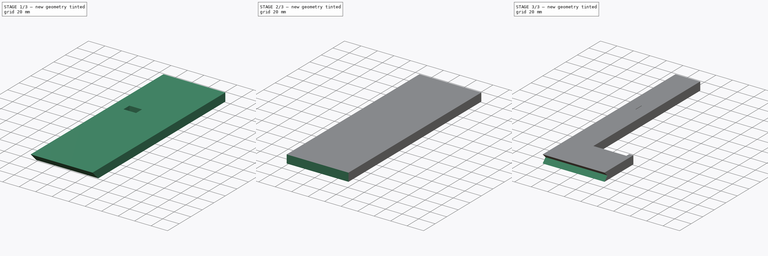
[diagram: build sequence overview — one tinted view per stage of 3, left to right]
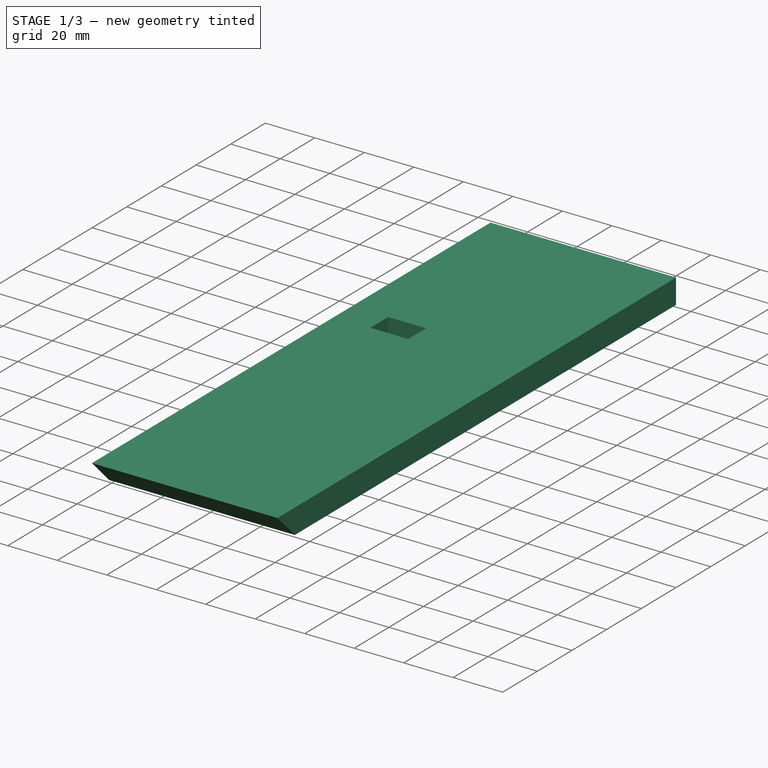
[diagram: stage 1 of 3 — iso view after this stage's code; geometry added in this stage tinted green]
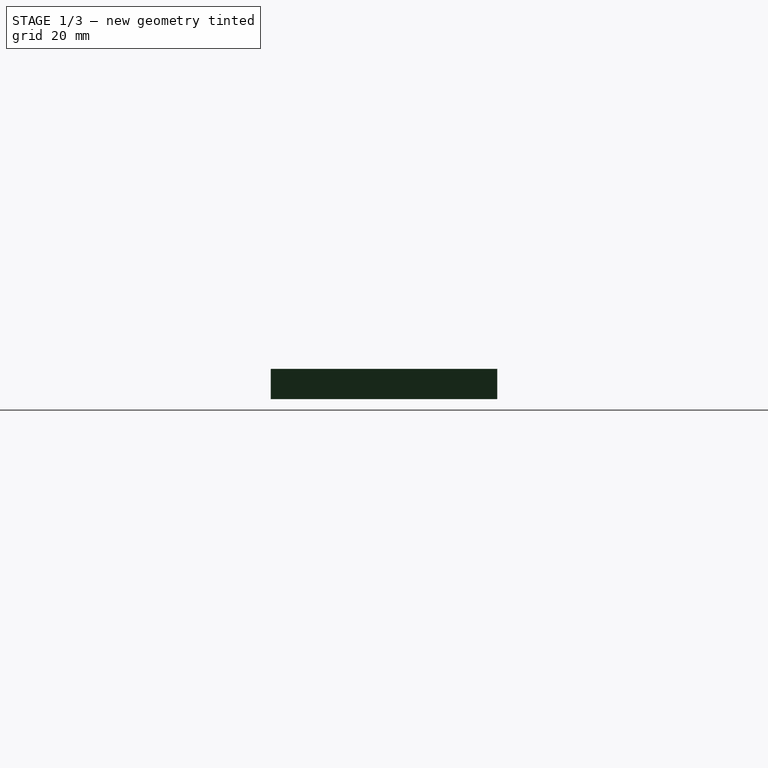
[diagram: stage 1 of 3 — front view after this stage's code; geometry added in this stage tinted green]
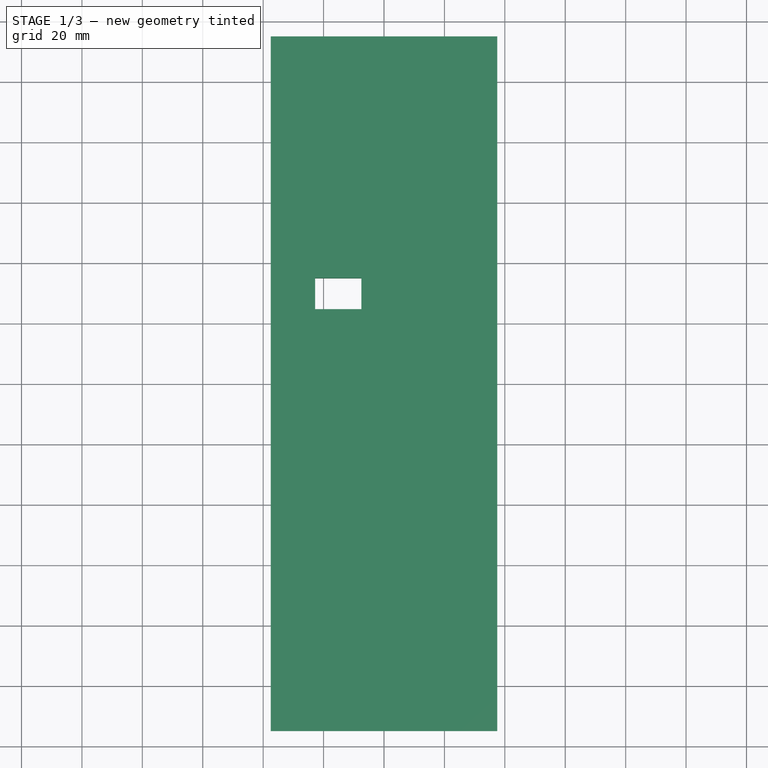
[diagram: stage 1 of 3 — top view after this stage's code; geometry added in this stage tinted green]
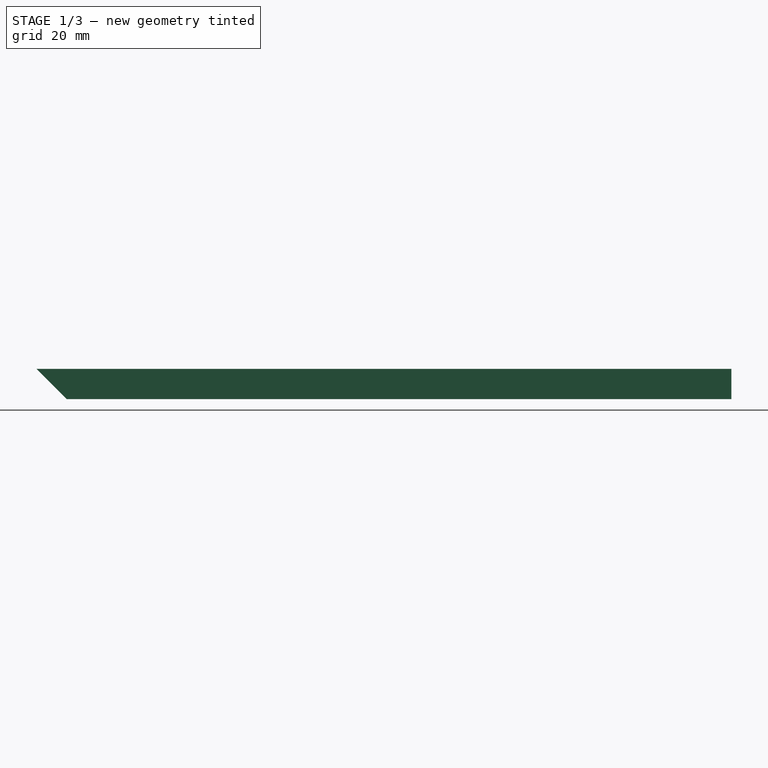
[diagram: stage 1 of 3 — right view after this stage's code; geometry added in this stage tinted green]
FCSTD DOCUMENT  (FreeCAD 0.20R29410 (Git))
Label: vertical_holder
License: All rights reserved
LicenseURL: http://en.wikipedia.org/wiki/All_rights_reserved
objects: Sketcher::SketchObject×8, PartDesign::Pocket×6, PartDesign::Plane×4, PartDesign::Pad×2, PartDesign::Body×2, Spreadsheet::Sheet×1
note: 30 computed .brp shape members not serialized (recipe doc carries the construction recipe); baked Part::Feature solids carry a one-line shape summary decoded from their .brp

FEATURE [Sketcher::SketchObject] Sketch001
  FullyConstrained = true
  MapMode = 5
  Support = -> [XY_Plane001]
  expr: Constraints[7] = <<Spreadsheet>>.height
  expr: Constraints[8] = <<Spreadsheet>>.depth
  sketch-geometry (4):
    g0: LineSegment StartX=-37.5 StartY=-115 StartZ=0 EndX=37.5 EndY=-115 EndZ=0
    g1: LineSegment StartX=37.5 StartY=-115 StartZ=0 EndX=37.5 EndY=115 EndZ=0
    g2: LineSegment StartX=37.5 StartY=115 StartZ=0 EndX=-37.5 EndY=115 EndZ=0
    g3: LineSegment StartX=-37.5 StartY=115 StartZ=0 EndX=-37.5 EndY=-115 EndZ=0
  constraints (11):
    c: Horizontal(g0)
    c: Vertical(g1)
    c: Coincident(g1,g2)
    c: Horizontal(g2)
    c: Vertical(g3)
    c: Coincident(g3,g0)
    c: Symmetric(g1,g0,g-1)
    c: Distance(g2,g0) = 230
    c: Distance(g2) = 75
    c: Coincident(g3,g2)
    c: Coincident(g1,g0)
FEATURE [PartDesign::Pad] Pad001  label="right_hook_pad"
  Direction = (0,0,1)
  Length = 10
  Length2 = 10
  Profile = -> Sketch001
  ReferenceAxis = -> Sketch001 [N_Axis]
  Type = 0
  expr: Length = <<Spreadsheet>>.thickness
FEATURE [PartDesign::Plane] DatumPlane001  label="right_front"
  AttachmentOffset = pos=(0,0,37.5) rot=(0,0,1;0rad)
  Length = 251.448
  MapMode = 5
  Placement = pos=(37.5,-8.3e-15,8.3e-15) rot=(0.57735,0.57735,0.57735;2.0944rad)
  ResizeMode = 0
  Support = -> [YZ_Plane001]
  Width = 71.4476
  expr: .AttachmentOffset.Base.z = <<Spreadsheet>>.depth / 2
FEATURE [Sketcher::SketchObject] Sketch003
  FullyConstrained = true
  MapMode = 5
  Placement = pos=(37.5,-8.3e-15,8.3e-15) rot=(0.57735,0.57735,0.57735;2.0944rad)
  Support = -> [DatumPlane001]
  expr: Constraints[10] = <<Spreadsheet>>.thickness
  expr: Constraints[2] = <<Spreadsheet>>.height / 2
  sketch-geometry (4):
    g0: LineSegment StartX=0 StartY=0 StartZ=0 EndX=-115 EndY=0 EndZ=0
    g1: LineSegment StartX=-115 StartY=0 StartZ=0 EndX=-105 EndY=0 EndZ=0
    g2: LineSegment StartX=-105 StartY=0 StartZ=0 EndX=-115 EndY=10 EndZ=0
    g3: LineSegment StartX=-115 StartY=10 StartZ=0 EndX=-115 EndY=0 EndZ=0
  constraints (11):
    c: Coincident(g0,g-1)
    c: PointOnObject(g0,g-1)
    c: Distance(g0) = 115
    c: Coincident(g0,g1)
    c: PointOnObject(g1,g0)
    c: Coincident(g1,g2)
    c: Coincident(g2,g3)
    c: Coincident(g3,g1)
    c: Vertical(g3)
    c: Equal(g1,g3)
    c: Distance(g3) = 10
FEATURE [PartDesign::Pocket] Pocket001  label="right_angle_cutout"
  BaseFeature = -> Pad001
  Direction = (-1,1e-16,-1e-16)
  Length = 75
  Length2 = 5
  Profile = -> Sketch003
  ReferenceAxis = -> Sketch003 [N_Axis]
  Type = 0
  expr: Length = <<Spreadsheet>>.depth
FEATURE [PartDesign::Body] Body  label="left hook"
  Group = -> [Sketch,Pad,DatumPlane,Sketch002,Pocket,DatumPlane002,Sketch004,Pocket002,Sketch005,Pocket003]
  Origin = -> Origin
  Tip = -> Pocket003
FEATURE [PartDesign::Plane] DatumPlane003  label="right_top"
  AttachmentOffset = pos=(0,0,10) rot=(0,0,1;0rad)
  Length = 101.268
  MapMode = 5
  Placement = pos=(0,0,10) rot=(0,0,1;0rad)
  ResizeMode = 0
  Support = -> [XY_Plane001]
  Width = 256.268
  expr: .AttachmentOffset.Base.z = <<Spreadsheet>>.thickness
FEATURE [Sketcher::SketchObject] Sketch006
  FullyConstrained = true
  MapMode = 5
  Placement = pos=(0,0,10) rot=(0,0,1;0rad)
  Support = -> [DatumPlane003]
  expr: Constraints[10] = <<Spreadsheet>>.depth
  expr: Constraints[14] = <<Spreadsheet>>.back_depth
  expr: Constraints[24] = <<Spreadsheet>>.cross_position
  expr: Constraints[25] = <<Spreadsheet>>.thickness + 0.3
  expr: Constraints[26] = <<Spreadsheet>>.back_depth / 2 + 0.3
  expr: Constraints[9] = <<Spreadsheet>>.height
  sketch-geometry (9):
    g0: LineSegment StartX=-37.5 StartY=115 StartZ=0 EndX=37.5 EndY=115 EndZ=0
    g1: LineSegment StartX=37.5 StartY=115 StartZ=0 EndX=37.5 EndY=-115 EndZ=0
    g2: LineSegment StartX=37.5 StartY=-115 StartZ=0 EndX=-37.5 EndY=-115 EndZ=0
    g3: LineSegment StartX=-37.5 StartY=-115 StartZ=0 EndX=-37.5 EndY=115 EndZ=0
    g4: LineSegment StartX=-7.5 StartY=115 StartZ=0 EndX=-7.5 EndY=-115 EndZ=0
    g5: LineSegment StartX=-7.5 StartY=24.7 StartZ=0 EndX=-22.8 EndY=24.7 EndZ=0
    g6: LineSegment StartX=-22.8 StartY=24.7 StartZ=0 EndX=-22.8 EndY=35 EndZ=0
    g7: LineSegment StartX=-22.8 StartY=35 StartZ=0 EndX=-7.5 EndY=35 EndZ=0
    g8: LineSegment StartX=-7.5 StartY=35 StartZ=0 EndX=-7.5 EndY=24.7 EndZ=0
  constraints (27):
    c: Coincident(g0,g1)
    c: Coincident(g1,g2)
    c: Coincident(g2,g3)
    c: Coincident(g3,g0)
    c: Horizontal(g0)
    c: Horizontal(g2)
    c: Vertical(g1)
    c: Vertical(g3)
    c: Symmetric(g1,g0,g-1)
    c: Distance(g1) = 230
    c: Distance(g2) = 75
    c: PointOnObject(g4,g0)
    c: PointOnObject(g4,g2)
    c: Vertical(g4)
    c: Distance(g0,g4) = 30
    c: Coincident(g5,g6)
    c: Coincident(g6,g7)
    c: Coincident(g7,g8)
    c: Coincident(g8,g5)
    c: Horizontal(g5)
    c: Horizontal(g7)
    c: Vertical(g6)
    c: Vertical(g8)
    c: PointOnObject(g5,g4)
    c: Distance(g7,g2) = 150
    c: Distance(g8) = 10.3
    c: Distance(g5) = 15.3
FEATURE [PartDesign::Pocket] Pocket004  label="right_cross"
  BaseFeature = -> Pocket001
  Direction = (0,0,-1)
  Length = 10
  Length2 = 5
  Profile = -> Sketch006
  ReferenceAxis = -> Sketch006 [N_Axis]
  Type = 0
  expr: Length = <<Spreadsheet>>.thickness
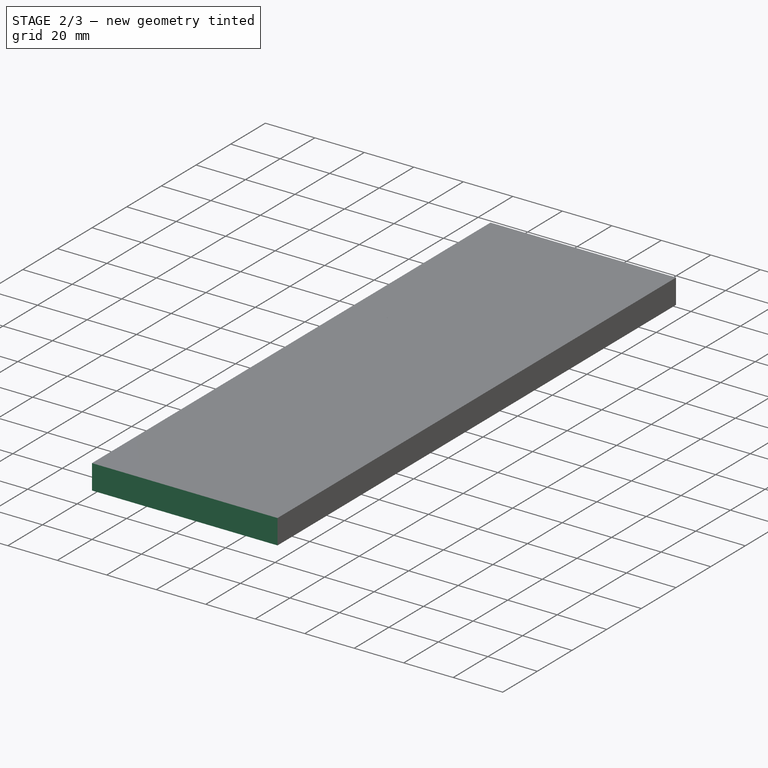
[diagram: stage 2 of 3 — iso view after this stage's code; geometry added in this stage tinted green]
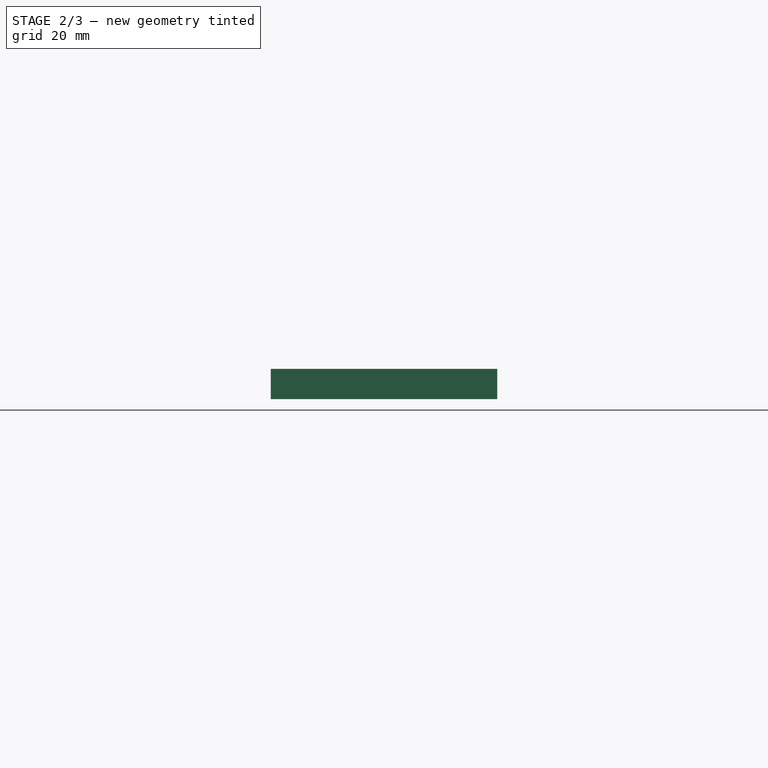
[diagram: stage 2 of 3 — front view after this stage's code; geometry added in this stage tinted green]
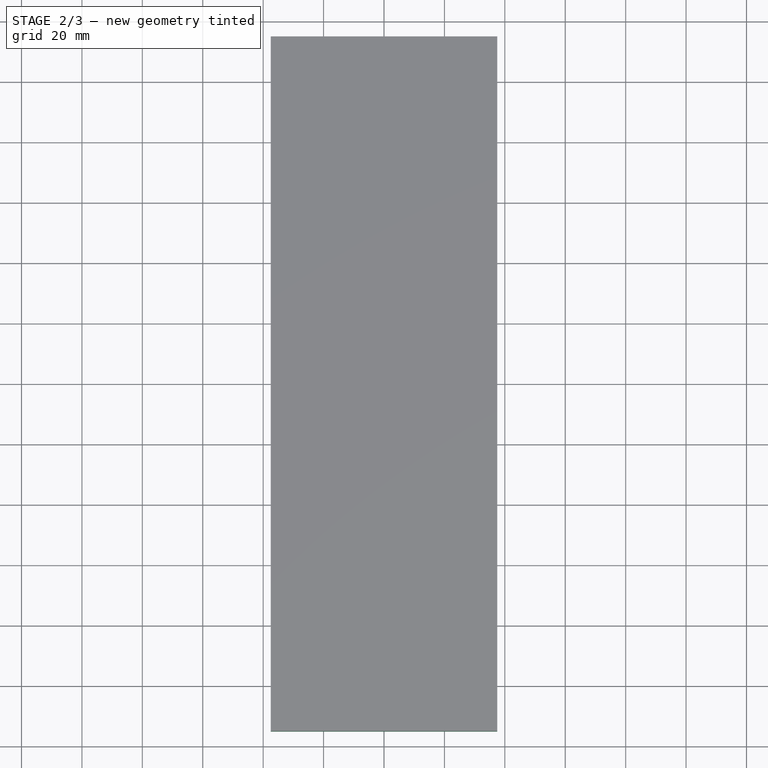
[diagram: stage 2 of 3 — top view after this stage's code; geometry added in this stage tinted green]
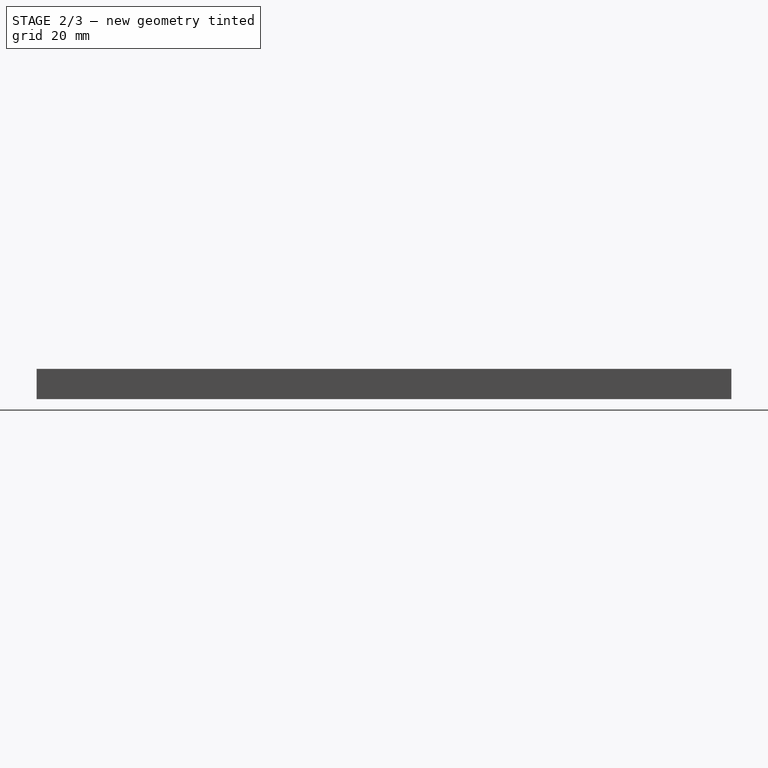
[diagram: stage 2 of 3 — right view after this stage's code; geometry added in this stage tinted green]
FEATURE [Spreadsheet::Sheet] Spreadsheet
  cells = A1=Height; B1=Depth; C1=Thickness; D1=Cross position; E1=Hook height; F1=Hook Depth; G1=Hook thickness; H1=back depth; A2(height)=230; B2(depth)=75; C2(thickness)=10; D2(cross_position)=150; E2(hook_height)=50; F2(hook_depth)=5; G2(hook_thickness)=5; H2(back_depth)=30
FEATURE [Sketcher::SketchObject] Sketch
  FullyConstrained = true
  MapMode = 5
  Support = -> [XY_Plane]
  expr: Constraints[4] = <<Spreadsheet>>.depth
  expr: Constraints[5] = <<Spreadsheet>>.height
  sketch-geometry (4):
    g0: LineSegment StartX=-37.5 StartY=115 StartZ=0 EndX=-37.5 EndY=-115 EndZ=0
    g1: LineSegment StartX=-37.5 StartY=-115 StartZ=0 EndX=37.5 EndY=-115 EndZ=0
    g2: LineSegment StartX=37.5 StartY=-115 StartZ=0 EndX=37.5 EndY=115 EndZ=0
    g3: LineSegment StartX=37.5 StartY=115 StartZ=0 EndX=-37.5 EndY=115 EndZ=0
  constraints (11):
    c: Vertical(g0)
    c: Coincident(g0,g1)
    c: Horizontal(g1)
    c: Symmetric(g0,g1,g-1)
    c: Distance(g1) = 75
    c: Distance(g0) = 230
    c: Coincident(g1,g2)
    c: Vertical(g2)
    c: Coincident(g3,g0)
    c: Horizontal(g3)
    c: Coincident(g3,g2)
FEATURE [PartDesign::Pad] Pad  label="left_hook_pad"
  Direction = (0,0,1)
  Length = 10
  Length2 = 10
  Profile = -> Sketch
  ReferenceAxis = -> Sketch [N_Axis]
  Type = 0
  expr: Length = <<Spreadsheet>>.thickness
FEATURE [Sketcher::SketchObject] Sketch007
  FullyConstrained = true
  MapMode = 5
  Placement = pos=(0,0,10) rot=(0,0,1;0rad)
  Support = -> [DatumPlane003]
  expr: Constraints[10] = <<Spreadsheet>>.depth
  expr: Constraints[14] = <<Spreadsheet>>.back_depth
  expr: Constraints[28] = <<Spreadsheet>>.hook_thickness
  expr: Constraints[29] = <<Spreadsheet>>.hook_height
  expr: Constraints[30] = <<Spreadsheet>>.hook_height - <<Spreadsheet>>.hook_depth
  expr: Constraints[9] = <<Spreadsheet>>.height
  sketch-geometry (11):
    g0: LineSegment StartX=-37.5 StartY=115 StartZ=0 EndX=37.5 EndY=115 EndZ=0
    g1: LineSegment StartX=37.5 StartY=115 StartZ=0 EndX=37.5 EndY=-115 EndZ=0
    g2: LineSegment StartX=37.5 StartY=-115 StartZ=0 EndX=-37.5 EndY=-115 EndZ=0
    g3: LineSegment StartX=-37.5 StartY=-115 StartZ=0 EndX=-37.5 EndY=115 EndZ=0
    g4: LineSegment StartX=-7.5 StartY=115 StartZ=0 EndX=-7.5 EndY=-115 EndZ=0
    g5: LineSegment StartX=-7.5 StartY=115 StartZ=0 EndX=-7.5 EndY=-70 EndZ=0
    g6: LineSegment StartX=-7.5 StartY=-70 StartZ=0 EndX=32.5 EndY=-70 EndZ=0
    g7: LineSegment StartX=32.5 StartY=-70 StartZ=0 EndX=32.5 EndY=-65 EndZ=0
    g8: LineSegment StartX=32.5 StartY=-65 StartZ=0 EndX=37.5 EndY=-65 EndZ=0
    g9: LineSegment StartX=37.5 StartY=-65 StartZ=0 EndX=37.5 EndY=115 EndZ=0
    g10: LineSegment StartX=37.5 StartY=115 StartZ=0 EndX=-7.5 EndY=115 EndZ=0
  constraints (31):
    c: Coincident(g0,g1)
    c: Coincident(g1,g2)
    c: Coincident(g2,g3)
    c: Coincident(g3,g0)
    c: Horizontal(g0)
    c: Horizontal(g2)
    c: Vertical(g1)
    c: Vertical(g3)
    c: Symmetric(g1,g0,g-1)
    c: Distance(g1) = 230
    c: Distance(g2) = 75
    c: PointOnObject(g4,g0)
    c: PointOnObject(g4,g2)
    c: Vertical(g4)
    c: Distance(g4,g0) = 30
    c: Vertical(g5)
    c: Coincident(g5,g6)
    c: Horizontal(g6)
    c: Coincident(g6,g7)
    c: Coincident(g7,g8)
    c: Horizontal(g8)
    c: Coincident(g8,g9)
    c: Vertical(g9)
    c: Coincident(g9,g10)
    c: Vertical(g7)
    c: Coincident(g10,g5)
    c: Coincident(g5,g4)
    c: Coincident(g9,g0)
    c: Distance(g8) = 5
    c: Distance(g8,g1) = 50
    c: Distance(g5,g4) = 45
FEATURE [PartDesign::Pocket] Pocket005  label="right_hook"
  BaseFeature = -> Pocket004
  Direction = (0,0,-1)
  Length = 10
  Length2 = 5
  Profile = -> Sketch007
  ReferenceAxis = -> Sketch007 [N_Axis]
  Type = 0
  expr: Length = <<Spreadsheet>>.thickness
FEATURE [PartDesign::Body] Body001  label="right hook"
  Group = -> [Sketch001,Pad001,DatumPlane001,Sketch003,Pocket001,DatumPlane003,Sketch006,Pocket004,Sketch007,Pocket005]
  Origin = -> Origin001
  Tip = -> Pocket005
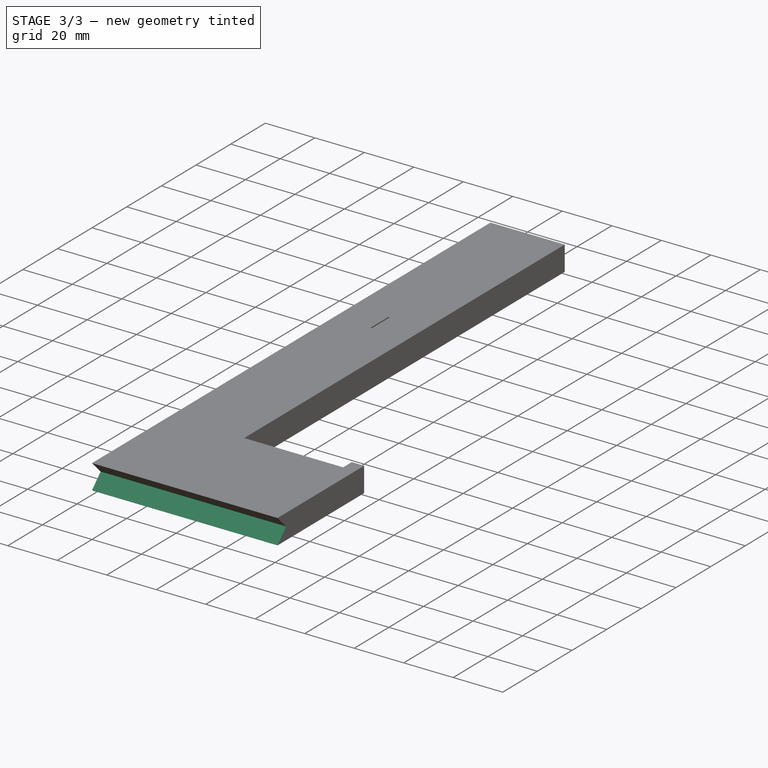
[diagram: stage 3 of 3 — iso view after this stage's code; geometry added in this stage tinted green]
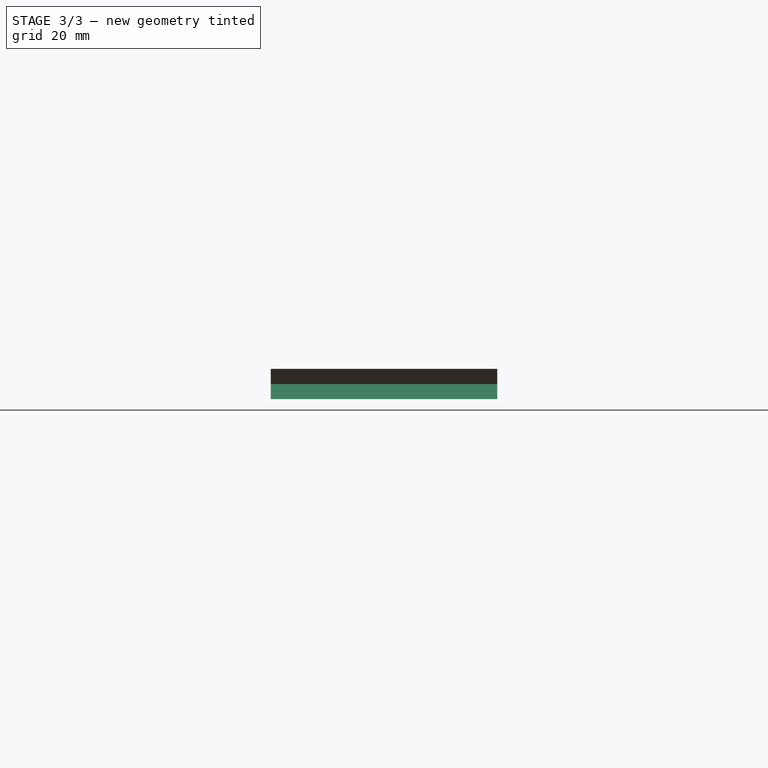
[diagram: stage 3 of 3 — front view after this stage's code; geometry added in this stage tinted green]
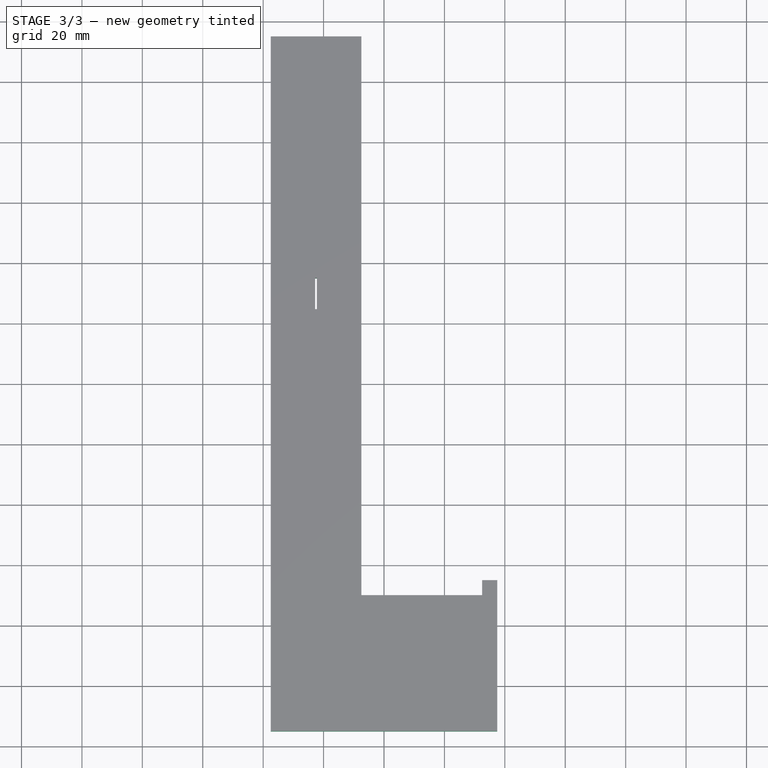
[diagram: stage 3 of 3 — top view after this stage's code; geometry added in this stage tinted green]
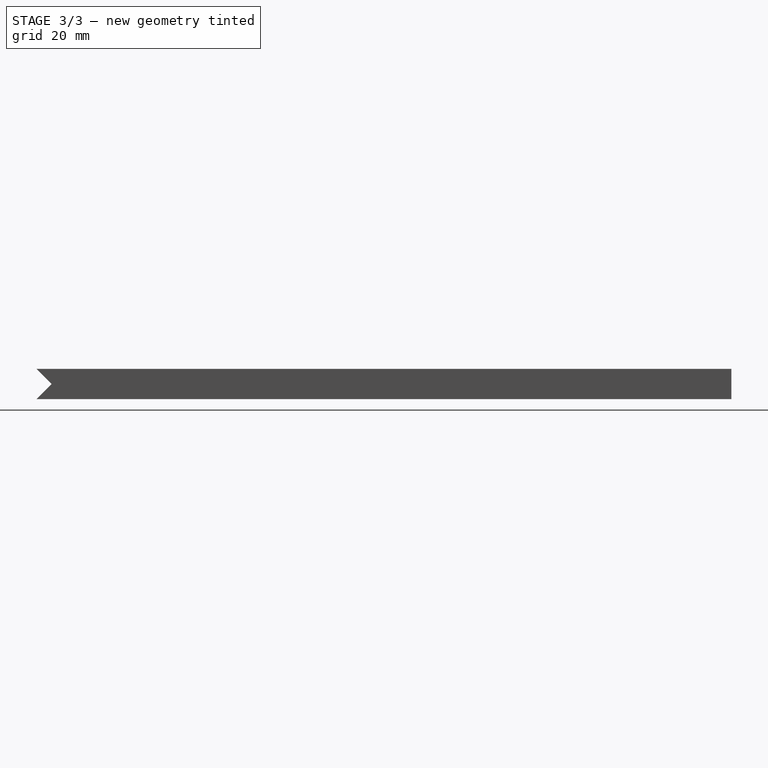
[diagram: stage 3 of 3 — right view after this stage's code; geometry added in this stage tinted green]
FEATURE [PartDesign::Plane] DatumPlane  label="left_front"
  AttachmentOffset = pos=(0,0,37.5) rot=(0,0,1;0rad)
  Length = 251.448
  MapMode = 5
  Placement = pos=(37.5,-8.3e-15,8.3e-15) rot=(0.57735,0.57735,0.57735;2.0944rad)
  ResizeMode = 0
  Support = -> [YZ_Plane]
  Width = 71.4476
  expr: .AttachmentOffset.Base.z = <<Spreadsheet>>.depth / 2
FEATURE [Sketcher::SketchObject] Sketch002
  FullyConstrained = true
  MapMode = 5
  Placement = pos=(37.5,-8.3e-15,8.3e-15) rot=(0.57735,0.57735,0.57735;2.0944rad)
  Support = -> [DatumPlane]
  expr: Constraints[2] = <<Spreadsheet>>.height / 2
  expr: Constraints[9] = <<Spreadsheet>>.thickness
  sketch-geometry (4):
    g0: LineSegment StartX=0 StartY=0 StartZ=0 EndX=-115 EndY=0 EndZ=0
    g1: LineSegment StartX=-115 StartY=0 StartZ=0 EndX=-115 EndY=10 EndZ=0
    g2: LineSegment StartX=-115 StartY=10 StartZ=0 EndX=-105 EndY=10 EndZ=0
    g3: LineSegment StartX=-105 StartY=10 StartZ=0 EndX=-115 EndY=0 EndZ=0
  constraints (11):
    c: Coincident(g0,g-1)
    c: PointOnObject(g0,g-1)
    c: Distance(g0) = 115
    c: Coincident(g0,g1)
    c: Vertical(g1)
    c: Coincident(g1,g2)
    c: Horizontal(g2)
    c: Coincident(g2,g3)
    c: Coincident(g3,g1)
    c: Distance(g1) = 10
    c: Equal(g1,g2)
FEATURE [PartDesign::Pocket] Pocket  label="left_angle_cutout"
  BaseFeature = -> Pad
  Direction = (-1,1e-16,-1e-16)
  Length = 75
  Length2 = 5
  Profile = -> Sketch002
  ReferenceAxis = -> Sketch002 [N_Axis]
  Type = 0
  expr: Length = <<Spreadsheet>>.depth
FEATURE [PartDesign::Plane] DatumPlane002  label="left_top"
  AttachmentOffset = pos=(0,0,10) rot=(0,0,1;0rad)
  Length = 101.268
  MapMode = 5
  Placement = pos=(0,0,10) rot=(0,0,1;0rad)
  ResizeMode = 0
  Support = -> [XY_Plane]
  Width = 256.268
  expr: .AttachmentOffset.Base.z = <<Spreadsheet>>.thickness
FEATURE [Sketcher::SketchObject] Sketch004
  FullyConstrained = true
  MapMode = 5
  Placement = pos=(0,0,10) rot=(0,0,1;0rad)
  Support = -> [DatumPlane002]
  expr: Constraints[10] = <<Spreadsheet>>.depth
  expr: Constraints[12] = <<Spreadsheet>>.cross_position
  expr: Constraints[22] = <<Spreadsheet>>.back_depth / 2 + 0.3
  expr: Constraints[23] = <<Spreadsheet>>.thickness + 0.3
  expr: Constraints[9] = <<Spreadsheet>>.height
  sketch-geometry (9):
    g0: LineSegment StartX=-37.5 StartY=115 StartZ=0 EndX=37.5 EndY=115 EndZ=0
    g1: LineSegment StartX=37.5 StartY=115 StartZ=0 EndX=37.5 EndY=-115 EndZ=0
    g2: LineSegment StartX=37.5 StartY=-115 StartZ=0 EndX=-37.5 EndY=-115 EndZ=0
    g3: LineSegment StartX=-37.5 StartY=-115 StartZ=0 EndX=-37.5 EndY=115 EndZ=0
    g4: GeomPoint X=-37.5 Y=35 Z=0
    g5: LineSegment StartX=-37.5 StartY=35 StartZ=0 EndX=-22.2 EndY=35 EndZ=0
    g6: LineSegment StartX=-22.2 StartY=35 StartZ=0 EndX=-22.2 EndY=24.7 EndZ=0
    g7: LineSegment StartX=-22.2 StartY=24.7 StartZ=0 EndX=-37.5 EndY=24.7 EndZ=0
    g8: LineSegment StartX=-37.5 StartY=24.7 StartZ=0 EndX=-37.5 EndY=35 EndZ=0
  constraints (24):
    c: Coincident(g0,g1)
    c: Coincident(g1,g2)
    c: Coincident(g2,g3)
    c: Coincident(g3,g0)
    c: Horizontal(g0)
    c: Horizontal(g2)
    c: Vertical(g1)
    c: Vertical(g3)
    c: Symmetric(g1,g0,g-1)
    c: Distance(g1) = 230
    c: Distance(g2) = 75
    c: PointOnObject(g4,g3)
    c: Distance(g4,g2) = 150
    c: Coincident(g5,g6)
    c: Coincident(g6,g7)
    c: Coincident(g7,g8)
    c: Coincident(g8,g5)
    c: Horizontal(g5)
    c: Horizontal(g7)
    c: Vertical(g6)
    c: Vertical(g8)
    c: Coincident(g5,g4)
    c: Distance(g5) = 15.3
    c: Distance(g6) = 10.3
FEATURE [PartDesign::Pocket] Pocket002  label="left_cross"
  BaseFeature = -> Pocket
  Direction = (0,0,-1)
  Length = 10
  Length2 = 5
  Profile = -> Sketch004
  ReferenceAxis = -> Sketch004 [N_Axis]
  Type = 0
  expr: Length = <<Spreadsheet>>.thickness
FEATURE [Sketcher::SketchObject] Sketch005
  FullyConstrained = true
  MapMode = 5
  Placement = pos=(0,0,10) rot=(0,0,1;0rad)
  Support = -> [DatumPlane002]
  expr: Constraints[10] = <<Spreadsheet>>.depth
  expr: Constraints[23] = <<Spreadsheet>>.back_depth
  expr: Constraints[26] = <<Spreadsheet>>.hook_height
  expr: Constraints[27] = <<Spreadsheet>>.hook_thickness
  expr: Constraints[32] = <<Spreadsheet>>.hook_height - <<Spreadsheet>>.hook_depth
  expr: Constraints[9] = <<Spreadsheet>>.height
  sketch-geometry (13):
    g0: LineSegment StartX=-37.5 StartY=-115 StartZ=0 EndX=37.5 EndY=-115 EndZ=0
    g1: LineSegment StartX=37.5 StartY=-115 StartZ=0 EndX=37.5 EndY=115 EndZ=0
    g2: LineSegment StartX=37.5 StartY=115 StartZ=0 EndX=-37.5 EndY=115 EndZ=0
    g3: LineSegment StartX=-37.5 StartY=115 StartZ=0 EndX=-37.5 EndY=-115 EndZ=0
    g4: GeomPoint X=-7.5 Y=115 Z=0
    g5: GeomPoint X=37.5 Y=-65 Z=0
    g6: LineSegment StartX=37.5 StartY=115 StartZ=0 EndX=-7.5 EndY=115 EndZ=0
    g7: LineSegment StartX=-7.5 StartY=115 StartZ=0 EndX=-7.5 EndY=-70 EndZ=0
    g8: LineSegment StartX=-7.5 StartY=-70 StartZ=0 EndX=32.5 EndY=-70 EndZ=0
    g9: LineSegment StartX=32.5 StartY=-70 StartZ=0 EndX=32.5 EndY=-65 EndZ=0
    g10: LineSegment StartX=32.5 StartY=-65 StartZ=0 EndX=37.5 EndY=-65 EndZ=0
    g11: LineSegment StartX=37.5 StartY=-65 StartZ=0 EndX=37.5 EndY=115 EndZ=0
    g12: LineSegment StartX=-7.5 StartY=115 StartZ=0 EndX=-7.5 EndY=-115 EndZ=0
  constraints (33):
    c: Coincident(g0,g1)
    c: Coincident(g1,g2)
    c: Coincident(g2,g3)
    c: Coincident(g3,g0)
    c: Horizontal(g0)
    c: Horizontal(g2)
    c: Vertical(g1)
    c: Vertical(g3)
    c: Symmetric(g1,g0,g-1)
    c: Distance(g3) = 230
    c: Distance(g0) = 75
    c: PointOnObject(g4,g2)
    c: PointOnObject(g5,g1)
    c: Coincident(g1,g6)
    c: Coincident(g6,g4)
    c: Coincident(g6,g7)
    c: Coincident(g7,g8)
    c: Horizontal(g8)
    c: Coincident(g8,g9)
    c: Vertical(g9)
    c: Coincident(g9,g10)
    c: Coincident(g10,g5)
    c: Horizontal(g10)
    c: Distance(g2,g6) = 30
    c: Coincident(g11,g10)
    c: Coincident(g11,g6)
    c: Distance(g10,g0) = 50
    c: Distance(g10) = 5
    c: Coincident(g12,g6)
    c: PointOnObject(g12,g0)
    c: Vertical(g12)
    c: PointOnObject(g7,g12)
    c: Distance(g7,g12) = 45
FEATURE [PartDesign::Pocket] Pocket003  label="left_hook"
  BaseFeature = -> Pocket002
  Direction = (0,0,-1)
  Length = 10
  Length2 = 5
  Profile = -> Sketch005
  ReferenceAxis = -> Sketch005 [N_Axis]
  Type = 0
  expr: Length = <<Spreadsheet>>.thickness
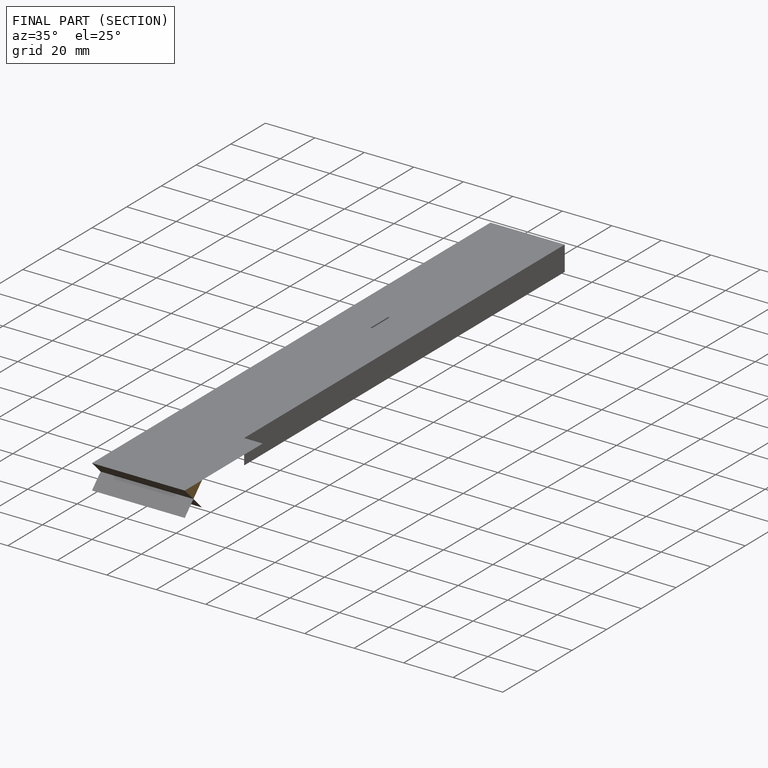
[diagram: finished part — half-section view (interior)]
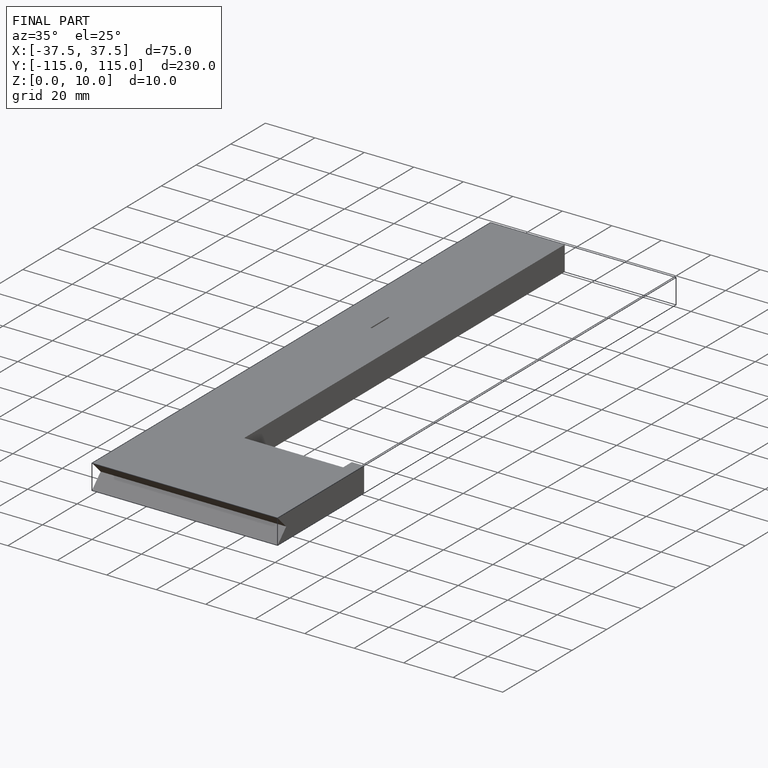
[diagram: finished part — iso view with bounding-box wireframe]
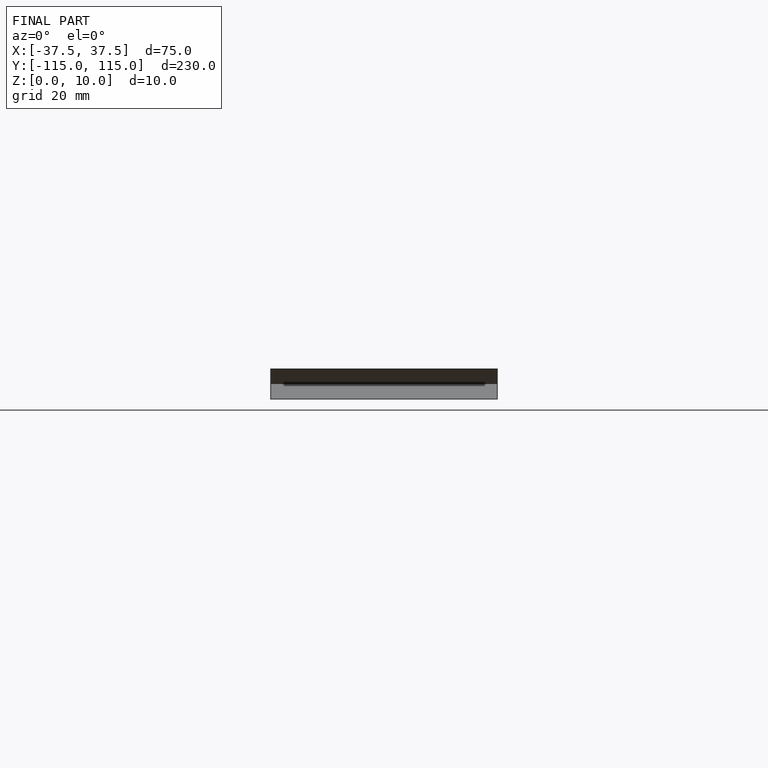
[diagram: finished part — front view with bounding-box wireframe]
